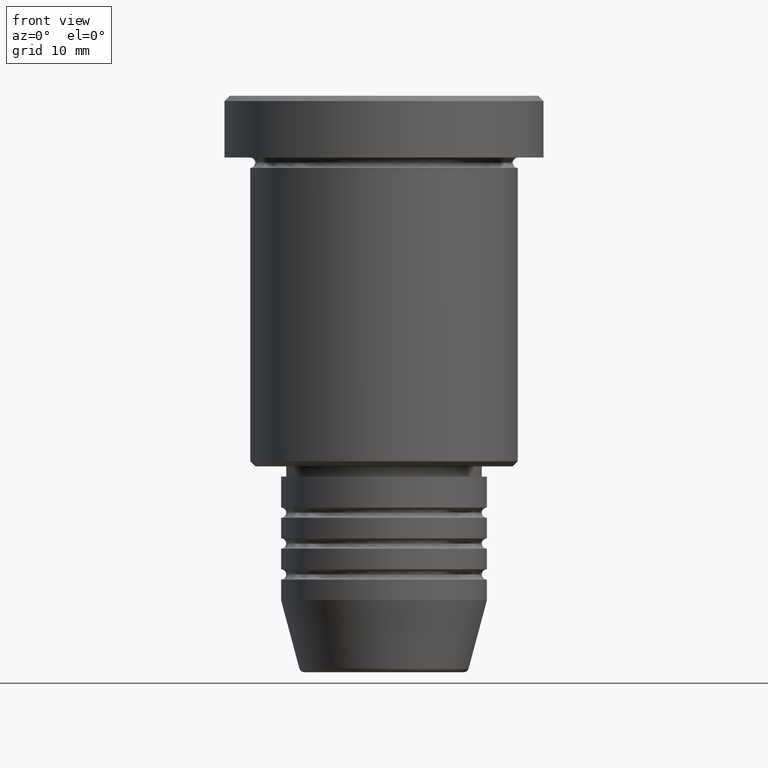
[diagram: clean part render]
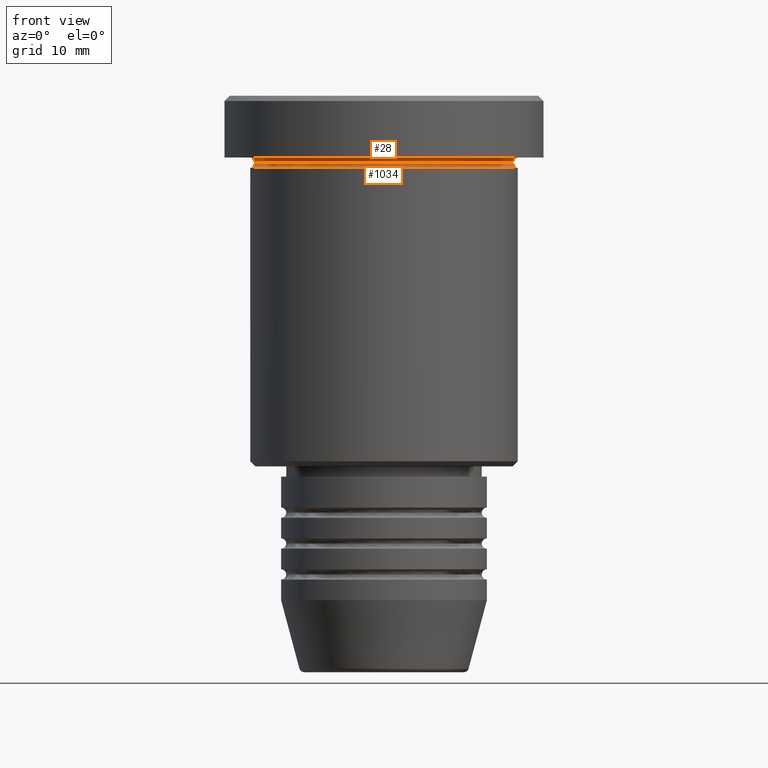
[diagram: same view with one multi-face feature highlighted, each face labeled with its STEP entity id]
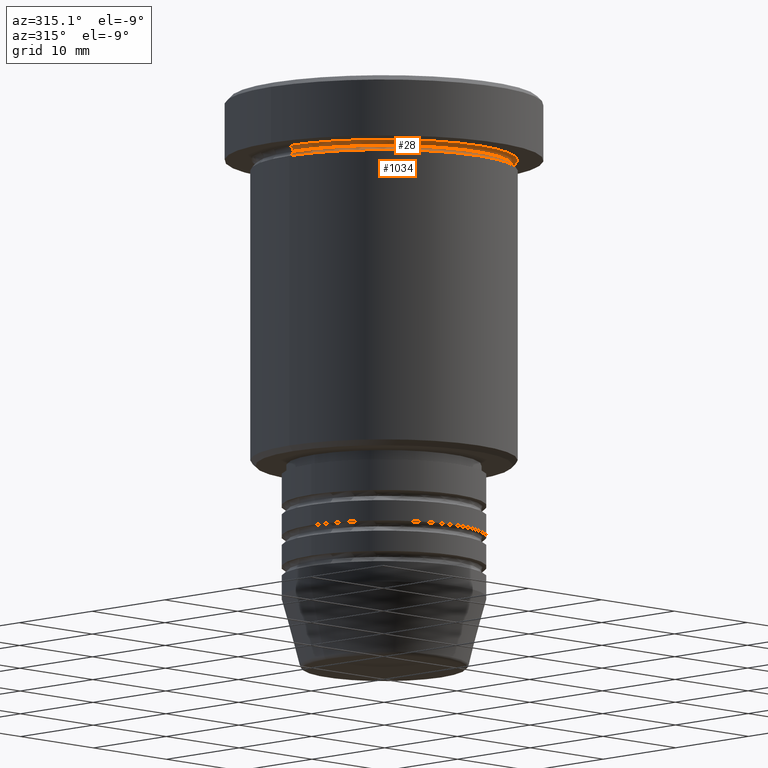
[diagram: same view with one multi-face feature highlighted, each face labeled with its STEP entity id]
A machine part, front view. The highlighted faces form ONE feature: a constant-radius fillet chain: 2 tangent blend faces with common blend radius 0.5 mm. The faces share edges in the B-rep.
A second angle (auxiliary view) of the same feature is appended — it is thin or edge-on in the first view.
Their STEP definitions:
[1] entity #28 (Torus):
#2 = DIRECTION ( 'NONE',  ( -1.000000000000000000, 0.000000000000000000, 0.000000000000000000 ) ) ;
#28 = ADVANCED_FACE ( 'NONE', ( #60 ), #325, .F. ) ;
#41 = VERTEX_POINT ( 'NONE', #140 ) ;
#45 = CIRCLE ( 'NONE', #1031, 0.5000000000000004441 ) ;
#54 = VERTEX_POINT ( 'NONE', #989 ) ;
#60 = FACE_OUTER_BOUND ( 'NONE', #195, .T. ) ;
#105 = DIRECTION ( 'NONE',  ( 0.000000000000000000, 0.000000000000000000, -1.000000000000000000 ) ) ;
#109 = DIRECTION ( 'NONE',  ( -0.000000000000000000, -0.000000000000000000, 1.000000000000000000 ) ) ;
#138 = EDGE_CURVE ( 'NONE', #54, #41, #144, .T. ) ;
#140 = CARTESIAN_POINT ( 'NONE',  ( 13.00000000000000000, 1.592040838891559095E-15, -5.999999999999994671 ) ) ;
#144 = CIRCLE ( 'NONE', #227, 13.00000000000000000 ) ;
#195 = EDGE_LOOP ( 'NONE', ( #1023, #565, #396, #300 ) ) ;
#227 = AXIS2_PLACEMENT_3D ( 'NONE', #749, #832, #2 ) ;
#252 = DIRECTION ( 'NONE',  ( -1.000000000000000000, -1.224646799147353454E-16, 0.000000000000000000 ) ) ;
#255 = DIRECTION ( 'NONE',  ( 0.000000000000000000, 0.000000000000000000, -1.000000000000000000 ) ) ;
#268 = AXIS2_PLACEMENT_3D ( 'NONE', #708, #255, #341 ) ;
#283 = AXIS2_PLACEMENT_3D ( 'NONE', #545, #1010, #105 ) ;
#285 = CARTESIAN_POINT ( 'NONE',  ( -12.49999999999999822, 1.561424668912875308E-15, -6.499999999999995559 ) ) ;
#293 = EDGE_CURVE ( 'NONE', #518, #410, #573, .T. ) ;
#300 = ORIENTED_EDGE ( 'NONE', *, *, #355, .F. ) ;
#325 = TOROIDAL_SURFACE ( 'NONE', #268, 13.00000000000000000, 0.5000000000000000000 ) ;
#341 = DIRECTION ( 'NONE',  ( -1.000000000000000000, 0.000000000000000000, 0.000000000000000000 ) ) ;
#355 = EDGE_CURVE ( 'NONE', #518, #54, #803, .T. ) ;
#367 = DIRECTION ( 'NONE',  ( -1.224646799147353207E-16, 1.000000000000000000, 0.000000000000000000 ) ) ;
#392 = CARTESIAN_POINT ( 'NONE',  ( 12.49999999999999822, 0.000000000000000000, -6.499999999999995559 ) ) ;
#396 = ORIENTED_EDGE ( 'NONE', *, *, #138, .F. ) ;
#410 = VERTEX_POINT ( 'NONE', #392 ) ;
#509 = AXIS2_PLACEMENT_3D ( 'NONE', #667, #109, #852 ) ;
#518 = VERTEX_POINT ( 'NONE', #285 ) ;
#545 = CARTESIAN_POINT ( 'NONE',  ( -13.00000000000000000, 0.000000000000000000, -6.499999999999995559 ) ) ;
#565 = ORIENTED_EDGE ( 'NONE', *, *, #1089, .T. ) ;
#573 = CIRCLE ( 'NONE', #509, 12.49999999999999822 ) ;
#667 = CARTESIAN_POINT ( 'NONE',  ( 0.000000000000000000, 0.000000000000000000, -6.499999999999995559 ) ) ;
#705 = CARTESIAN_POINT ( 'NONE',  ( 13.00000000000000000, 1.592040838891559095E-15, -6.499999999999995559 ) ) ;
#708 = CARTESIAN_POINT ( 'NONE',  ( 0.000000000000000000, 0.000000000000000000, -6.499999999999995559 ) ) ;
#749 = CARTESIAN_POINT ( 'NONE',  ( 0.000000000000000000, 0.000000000000000000, -5.999999999999995559 ) ) ;
#803 = CIRCLE ( 'NONE', #283, 0.5000000000000004441 ) ;
#832 = DIRECTION ( 'NONE',  ( -0.000000000000000000, -0.000000000000000000, 1.000000000000000000 ) ) ;
#852 = DIRECTION ( 'NONE',  ( 1.000000000000000000, 0.000000000000000000, 0.000000000000000000 ) ) ;
#989 = CARTESIAN_POINT ( 'NONE',  ( -13.00000000000000000, 0.000000000000000000, -5.999999999999994671 ) ) ;
#1010 = DIRECTION ( 'NONE',  ( -0.000000000000000000, -1.000000000000000000, -0.000000000000000000 ) ) ;
#1023 = ORIENTED_EDGE ( 'NONE', *, *, #293, .T. ) ;
#1031 = AXIS2_PLACEMENT_3D ( 'NONE', #705, #367, #252 ) ;
#1089 = EDGE_CURVE ( 'NONE', #410, #41, #45, .T. ) ;
[2] entity #1034 (Torus):
#26 = AXIS2_PLACEMENT_3D ( 'NONE', #636, #659, #316 ) ;
#71 = CARTESIAN_POINT ( 'NONE',  ( 13.00000000000000000, 0.000000000000000000, -6.999999999999995559 ) ) ;
#99 = VERTEX_POINT ( 'NONE', #521 ) ;
#109 = DIRECTION ( 'NONE',  ( -0.000000000000000000, -0.000000000000000000, 1.000000000000000000 ) ) ;
#117 = CIRCLE ( 'NONE', #986, 13.00000000000000000 ) ;
#124 = CIRCLE ( 'NONE', #957, 0.5000000000000004441 ) ;
#125 = CARTESIAN_POINT ( 'NONE',  ( 0.000000000000000000, 0.000000000000000000, -6.999999999999995559 ) ) ;
#142 = DIRECTION ( 'NONE',  ( 0.000000000000000000, -1.000000000000000000, 0.000000000000000000 ) ) ;
#216 = DIRECTION ( 'NONE',  ( 1.000000000000000000, 0.000000000000000000, 0.000000000000000000 ) ) ;
#260 = TOROIDAL_SURFACE ( 'NONE', #629, 13.00000000000000000, 0.5000000000000000000 ) ;
#285 = CARTESIAN_POINT ( 'NONE',  ( -12.49999999999999822, 1.561424668912875308E-15, -6.499999999999995559 ) ) ;
#293 = EDGE_CURVE ( 'NONE', #518, #410, #573, .T. ) ;
#316 = DIRECTION ( 'NONE',  ( -1.000000000000000000, 1.224646799147353454E-16, 0.000000000000000000 ) ) ;
#336 = EDGE_CURVE ( 'NONE', #410, #443, #124, .T. ) ;
#380 = DIRECTION ( 'NONE',  ( -0.000000000000000000, -0.000000000000000000, 1.000000000000000000 ) ) ;
#392 = CARTESIAN_POINT ( 'NONE',  ( 12.49999999999999822, 0.000000000000000000, -6.499999999999995559 ) ) ;
#394 = FACE_OUTER_BOUND ( 'NONE', #428, .T. ) ;
#410 = VERTEX_POINT ( 'NONE', #392 ) ;
#428 = EDGE_LOOP ( 'NONE', ( #902, #1082, #468, #464 ) ) ;
#443 = VERTEX_POINT ( 'NONE', #71 ) ;
#464 = ORIENTED_EDGE ( 'NONE', *, *, #336, .F. ) ;
#468 = ORIENTED_EDGE ( 'NONE', *, *, #945, .T. ) ;
#509 = AXIS2_PLACEMENT_3D ( 'NONE', #667, #109, #852 ) ;
#518 = VERTEX_POINT ( 'NONE', #285 ) ;
#521 = CARTESIAN_POINT ( 'NONE',  ( -13.00000000000000000, 1.592040838891559095E-15, -6.999999999999995559 ) ) ;
#552 = CIRCLE ( 'NONE', #26, 0.5000000000000004441 ) ;
#573 = CIRCLE ( 'NONE', #509, 12.49999999999999822 ) ;
#606 = CARTESIAN_POINT ( 'NONE',  ( 13.00000000000000000, 0.000000000000000000, -6.499999999999995559 ) ) ;
#629 = AXIS2_PLACEMENT_3D ( 'NONE', #853, #927, #216 ) ;
#636 = CARTESIAN_POINT ( 'NONE',  ( -13.00000000000000000, 1.592040838891559095E-15, -6.499999999999995559 ) ) ;
#659 = DIRECTION ( 'NONE',  ( 1.224646799147353207E-16, 1.000000000000000000, 0.000000000000000000 ) ) ;
#660 = DIRECTION ( 'NONE',  ( 1.000000000000000000, 0.000000000000000000, 0.000000000000000000 ) ) ;
#667 = CARTESIAN_POINT ( 'NONE',  ( 0.000000000000000000, 0.000000000000000000, -6.499999999999995559 ) ) ;
#709 = DIRECTION ( 'NONE',  ( 0.000000000000000000, 0.000000000000000000, -1.000000000000000000 ) ) ;
#852 = DIRECTION ( 'NONE',  ( 1.000000000000000000, 0.000000000000000000, 0.000000000000000000 ) ) ;
#853 = CARTESIAN_POINT ( 'NONE',  ( 0.000000000000000000, 0.000000000000000000, -6.499999999999995559 ) ) ;
#902 = ORIENTED_EDGE ( 'NONE', *, *, #293, .F. ) ;
#927 = DIRECTION ( 'NONE',  ( -0.000000000000000000, -0.000000000000000000, 1.000000000000000000 ) ) ;
#945 = EDGE_CURVE ( 'NONE', #99, #443, #117, .T. ) ;
#957 = AXIS2_PLACEMENT_3D ( 'NONE', #606, #142, #709 ) ;
#986 = AXIS2_PLACEMENT_3D ( 'NONE', #125, #380, #660 ) ;
#1034 = ADVANCED_FACE ( 'NONE', ( #394 ), #260, .F. ) ;
#1082 = ORIENTED_EDGE ( 'NONE', *, *, #1101, .T. ) ;
#1101 = EDGE_CURVE ( 'NONE', #518, #99, #552, .T. ) ;